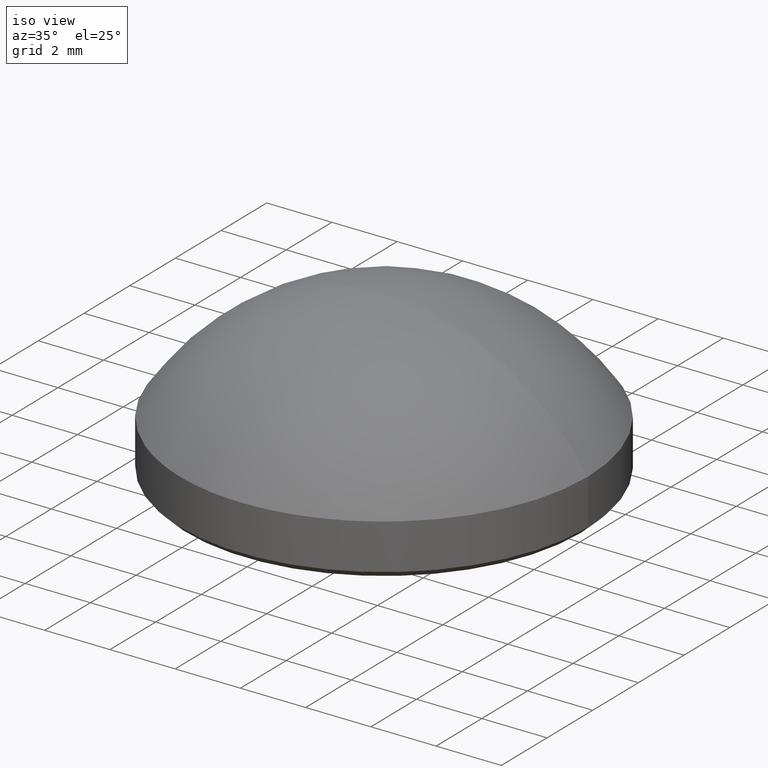
[diagram: clean part render]
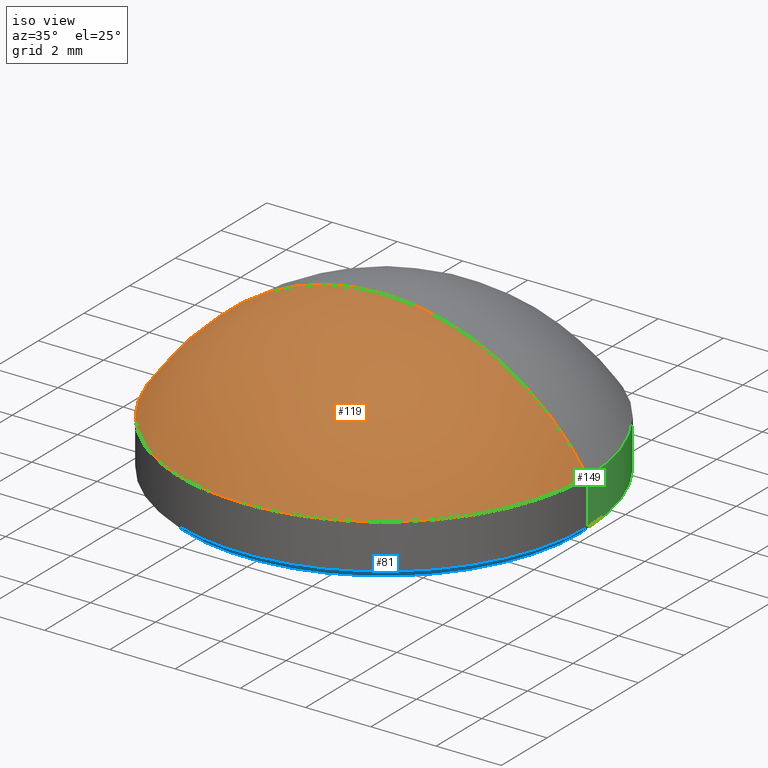
[diagram: same view with three faces highlighted in distinct colors, each labeled with its STEP entity id]
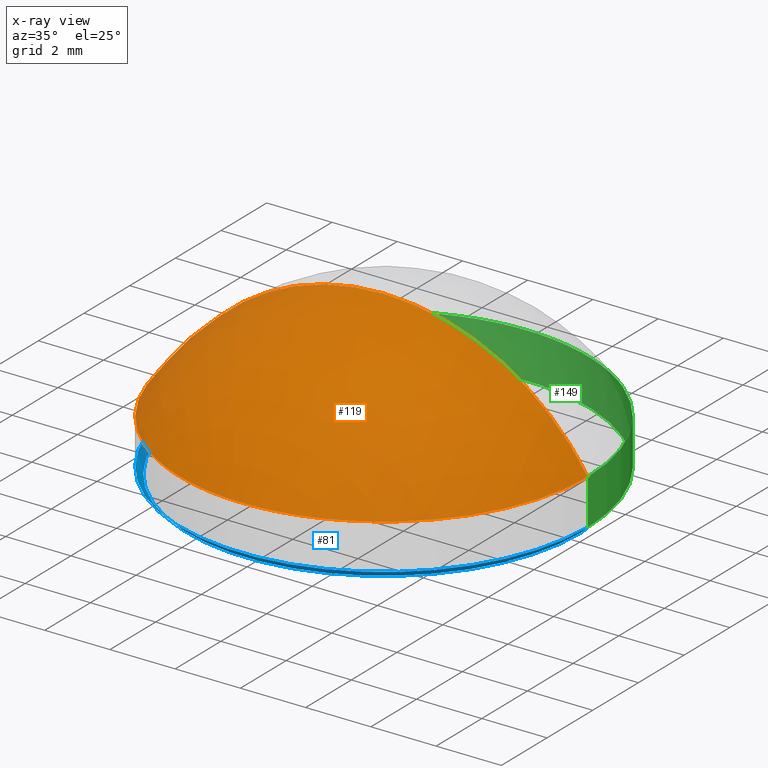
[diagram: x-ray of the same camera — body ghosted, the three highlighted faces saturated]
A machine part, iso view with three faces highlighted in distinct colors.
The next image is the same camera in x-ray (body ghosted, the three faces saturated) — at least one of them is partly hidden behind the body in this view.
Their STEP definitions:

[orange] entity #119 — the highlighted spherical surface has radius 7.4445 mm.
#4 = DIRECTION ( 'NONE',  ( 0.000000000000000000, 0.000000000000000000, 1.000000000000000000 ) ) ;
#6 = EDGE_CURVE ( 'NONE', #61, #165, #167, .T. ) ;
#11 = ORIENTED_EDGE ( 'NONE', *, *, #125, .T. ) ;
#16 = DIRECTION ( 'NONE',  ( -1.224646799147353207E-16, -1.000000000000000000, -0.000000000000000000 ) ) ;
#19 = CARTESIAN_POINT ( 'NONE',  ( -4.558432543370360034E-16, 0.000000000000000000, 5.000000000000000000 ) ) ;
#20 = DIRECTION ( 'NONE',  ( 0.000000000000000000, 0.000000000000000000, 1.000000000000000000 ) ) ;
#25 = ORIENTED_EDGE ( 'NONE', *, *, #6, .T. ) ;
#27 = ORIENTED_EDGE ( 'NONE', *, *, #186, .F. ) ;
#32 = DIRECTION ( 'NONE',  ( 0.000000000000000000, 1.000000000000000000, 0.000000000000000000 ) ) ;
#42 = AXIS2_PLACEMENT_3D ( 'NONE', #48, #171, #68 ) ;
#48 = CARTESIAN_POINT ( 'NONE',  ( 0.000000000000000000, 0.000000000000000000, -2.444485294117647367 ) ) ;
#51 = AXIS2_PLACEMENT_3D ( 'NONE', #124, #4, #87 ) ;
#61 = VERTEX_POINT ( 'NONE', #94 ) ;
#68 = DIRECTION ( 'NONE',  ( -1.000000000000000000, 0.000000000000000000, 0.000000000000000000 ) ) ;
#70 = DIRECTION ( 'NONE',  ( 1.000000000000000000, -1.224646799147353207E-16, 0.000000000000000000 ) ) ;
#71 = EDGE_LOOP ( 'NONE', ( #11, #25, #27 ) ) ;
#83 = CARTESIAN_POINT ( 'NONE',  ( -6.250000000000000000, 0.000000000000000000, 1.600000000000000089 ) ) ;
#86 = FACE_OUTER_BOUND ( 'NONE', #71, .T. ) ;
#87 = DIRECTION ( 'NONE',  ( 1.000000000000000000, 0.000000000000000000, 0.000000000000000000 ) ) ;
#93 = CIRCLE ( 'NONE', #214, 7.444485294117647811 ) ;
#94 = CARTESIAN_POINT ( 'NONE',  ( 6.250000000000000000, 7.654042494670957606E-16, 1.600000000000000089 ) ) ;
#119 = ADVANCED_FACE ( 'NONE', ( #86 ), #174, .T. ) ;
#124 = CARTESIAN_POINT ( 'NONE',  ( 0.000000000000000000, 0.000000000000000000, 1.600000000000000089 ) ) ;
#125 = EDGE_CURVE ( 'NONE', #209, #61, #197, .T. ) ;
#133 = CARTESIAN_POINT ( 'NONE',  ( 0.000000000000000000, 0.000000000000000000, -2.444485294117647367 ) ) ;
#137 = CARTESIAN_POINT ( 'NONE',  ( 0.000000000000000000, 0.000000000000000000, -2.444485294117647367 ) ) ;
#165 = VERTEX_POINT ( 'NONE', #19 ) ;
#167 = CIRCLE ( 'NONE', #168, 7.444485294117647811 ) ;
#168 = AXIS2_PLACEMENT_3D ( 'NONE', #133, #16, #70 ) ;
#171 = DIRECTION ( 'NONE',  ( -0.000000000000000000, -1.000000000000000000, 0.000000000000000000 ) ) ;
#174 = SPHERICAL_SURFACE ( 'NONE', #42, 7.444485294117647811 ) ;
#186 = EDGE_CURVE ( 'NONE', #209, #165, #93, .T. ) ;
#197 = CIRCLE ( 'NONE', #51, 6.250000000000000000 ) ;
#209 = VERTEX_POINT ( 'NONE', #83 ) ;
#214 = AXIS2_PLACEMENT_3D ( 'NONE', #137, #32, #20 ) ;

[blue] entity #81 — the highlighted conical surface has half-angle 45 deg.
#1 = CARTESIAN_POINT ( 'NONE',  ( 0.000000000000000000, 0.000000000000000000, 0.000000000000000000 ) ) ;
#2 = EDGE_CURVE ( 'NONE', #13, #117, #185, .T. ) ;
#3 = DIRECTION ( 'NONE',  ( -0.000000000000000000, -0.000000000000000000, 1.000000000000000000 ) ) ;
#13 = VERTEX_POINT ( 'NONE', #28 ) ;
#28 = CARTESIAN_POINT ( 'NONE',  ( -6.050000000000000711, 7.531577814756223050E-16, 0.000000000000000000 ) ) ;
#30 = DIRECTION ( 'NONE',  ( -0.000000000000000000, -0.000000000000000000, 1.000000000000000000 ) ) ;
#31 = AXIS2_PLACEMENT_3D ( 'NONE', #113, #30, #129 ) ;
#37 = DIRECTION ( 'NONE',  ( 1.000000000000000000, 0.000000000000000000, 0.000000000000000000 ) ) ;
#41 = ORIENTED_EDGE ( 'NONE', *, *, #104, .F. ) ;
#44 = FACE_OUTER_BOUND ( 'NONE', #208, .T. ) ;
#45 = CIRCLE ( 'NONE', #212, 6.250000000000000000 ) ;
#56 = ORIENTED_EDGE ( 'NONE', *, *, #2, .F. ) ;
#65 = DIRECTION ( 'NONE',  ( -0.000000000000000000, -0.000000000000000000, -1.000000000000000000 ) ) ;
#81 = ADVANCED_FACE ( 'NONE', ( #44 ), #136, .T. ) ;
#96 = VERTEX_POINT ( 'NONE', #157 ) ;
#98 = VERTEX_POINT ( 'NONE', #139 ) ;
#104 = EDGE_CURVE ( 'NONE', #117, #96, #45, .T. ) ;
#105 = DIRECTION ( 'NONE',  ( 1.000000000000000000, 0.000000000000000000, 0.000000000000000000 ) ) ;
#110 = AXIS2_PLACEMENT_3D ( 'NONE', #1, #65, #37 ) ;
#113 = CARTESIAN_POINT ( 'NONE',  ( 0.000000000000000000, 0.000000000000000000, 0.1999999999999987899 ) ) ;
#117 = VERTEX_POINT ( 'NONE', #170 ) ;
#120 = VECTOR ( 'NONE', #199, 1000.000000000000114 ) ;
#123 = CIRCLE ( 'NONE', #110, 6.050000000000000711 ) ;
#129 = DIRECTION ( 'NONE',  ( 1.000000000000000000, 0.000000000000000000, 0.000000000000000000 ) ) ;
#136 = CONICAL_SURFACE ( 'NONE', #31, 6.250000000000000000, 0.7853981633974504994 ) ;
#139 = CARTESIAN_POINT ( 'NONE',  ( 6.050000000000000711, 0.000000000000000000, 0.000000000000000000 ) ) ;
#140 = LINE ( 'NONE', #191, #120 ) ;
#141 = EDGE_CURVE ( 'NONE', #98, #96, #140, .T. ) ;
#147 = ORIENTED_EDGE ( 'NONE', *, *, #141, .T. ) ;
#150 = CARTESIAN_POINT ( 'NONE',  ( -6.250000000000000000, 7.654042494670957606E-16, 0.1999999999999987899 ) ) ;
#151 = DIRECTION ( 'NONE',  ( -0.7071067811865490160, 8.659560562354953812E-17, 0.7071067811865460184 ) ) ;
#154 = VECTOR ( 'NONE', #151, 1000.000000000000114 ) ;
#157 = CARTESIAN_POINT ( 'NONE',  ( 6.250000000000000000, 7.654042494670957606E-16, 0.1999999999999987899 ) ) ;
#162 = ORIENTED_EDGE ( 'NONE', *, *, #215, .F. ) ;
#170 = CARTESIAN_POINT ( 'NONE',  ( -6.250000000000000000, 0.000000000000000000, 0.1999999999999987899 ) ) ;
#185 = LINE ( 'NONE', #150, #154 ) ;
#191 = CARTESIAN_POINT ( 'NONE',  ( 6.250000000000000000, 0.000000000000000000, 0.1999999999999987899 ) ) ;
#199 = DIRECTION ( 'NONE',  ( 0.7071067811865490160, 0.000000000000000000, 0.7071067811865460184 ) ) ;
#201 = CARTESIAN_POINT ( 'NONE',  ( 0.000000000000000000, 0.000000000000000000, 0.1999999999999987899 ) ) ;
#208 = EDGE_LOOP ( 'NONE', ( #56, #162, #147, #41 ) ) ;
#212 = AXIS2_PLACEMENT_3D ( 'NONE', #201, #3, #105 ) ;
#215 = EDGE_CURVE ( 'NONE', #98, #13, #123, .T. ) ;

[green] entity #149 — the highlighted cylindrical surface (partial cylindrical patch) has radius 6.25 mm, axis along (-0, -0, -1).
#14 = CIRCLE ( 'NONE', #142, 6.250000000000000000 ) ;
#15 = DIRECTION ( 'NONE',  ( -0.000000000000000000, -0.000000000000000000, -1.000000000000000000 ) ) ;
#18 = VECTOR ( 'NONE', #15, 1000.000000000000000 ) ;
#29 = DIRECTION ( 'NONE',  ( 1.000000000000000000, 0.000000000000000000, 0.000000000000000000 ) ) ;
#33 = DIRECTION ( 'NONE',  ( 0.000000000000000000, 0.000000000000000000, 1.000000000000000000 ) ) ;
#35 = EDGE_CURVE ( 'NONE', #209, #117, #92, .T. ) ;
#40 = EDGE_LOOP ( 'NONE', ( #73, #89, #114, #180 ) ) ;
#50 = DIRECTION ( 'NONE',  ( -1.000000000000000000, 0.000000000000000000, 0.000000000000000000 ) ) ;
#61 = VERTEX_POINT ( 'NONE', #94 ) ;
#62 = VECTOR ( 'NONE', #121, 1000.000000000000000 ) ;
#69 = AXIS2_PLACEMENT_3D ( 'NONE', #203, #190, #50 ) ;
#73 = ORIENTED_EDGE ( 'NONE', *, *, #182, .F. ) ;
#76 = CARTESIAN_POINT ( 'NONE',  ( -6.250000000000000000, 0.000000000000000000, 1.600000000000000089 ) ) ;
#77 = AXIS2_PLACEMENT_3D ( 'NONE', #84, #33, #155 ) ;
#79 = EDGE_CURVE ( 'NONE', #96, #117, #14, .T. ) ;
#83 = CARTESIAN_POINT ( 'NONE',  ( -6.250000000000000000, 0.000000000000000000, 1.600000000000000089 ) ) ;
#84 = CARTESIAN_POINT ( 'NONE',  ( 0.000000000000000000, 0.000000000000000000, 1.600000000000000089 ) ) ;
#89 = ORIENTED_EDGE ( 'NONE', *, *, #108, .T. ) ;
#92 = LINE ( 'NONE', #76, #18 ) ;
#94 = CARTESIAN_POINT ( 'NONE',  ( 6.250000000000000000, 7.654042494670957606E-16, 1.600000000000000089 ) ) ;
#96 = VERTEX_POINT ( 'NONE', #157 ) ;
#103 = CARTESIAN_POINT ( 'NONE',  ( 6.250000000000000000, 7.654042494670957606E-16, 1.600000000000000089 ) ) ;
#106 = FACE_OUTER_BOUND ( 'NONE', #40, .T. ) ;
#108 = EDGE_CURVE ( 'NONE', #61, #96, #122, .T. ) ;
#114 = ORIENTED_EDGE ( 'NONE', *, *, #79, .T. ) ;
#115 = CARTESIAN_POINT ( 'NONE',  ( 0.000000000000000000, 0.000000000000000000, 0.1999999999999987899 ) ) ;
#117 = VERTEX_POINT ( 'NONE', #170 ) ;
#121 = DIRECTION ( 'NONE',  ( -0.000000000000000000, -0.000000000000000000, -1.000000000000000000 ) ) ;
#122 = LINE ( 'NONE', #103, #62 ) ;
#142 = AXIS2_PLACEMENT_3D ( 'NONE', #115, #184, #29 ) ;
#149 = ADVANCED_FACE ( 'NONE', ( #106 ), #189, .T. ) ;
#155 = DIRECTION ( 'NONE',  ( 1.000000000000000000, 0.000000000000000000, 0.000000000000000000 ) ) ;
#157 = CARTESIAN_POINT ( 'NONE',  ( 6.250000000000000000, 7.654042494670957606E-16, 0.1999999999999987899 ) ) ;
#170 = CARTESIAN_POINT ( 'NONE',  ( -6.250000000000000000, 0.000000000000000000, 0.1999999999999987899 ) ) ;
#176 = CIRCLE ( 'NONE', #77, 6.250000000000000000 ) ;
#180 = ORIENTED_EDGE ( 'NONE', *, *, #35, .F. ) ;
#182 = EDGE_CURVE ( 'NONE', #61, #209, #176, .T. ) ;
#184 = DIRECTION ( 'NONE',  ( -0.000000000000000000, -0.000000000000000000, 1.000000000000000000 ) ) ;
#189 = CYLINDRICAL_SURFACE ( 'NONE', #69, 6.250000000000000000 ) ;
#190 = DIRECTION ( 'NONE',  ( -0.000000000000000000, -0.000000000000000000, -1.000000000000000000 ) ) ;
#203 = CARTESIAN_POINT ( 'NONE',  ( 0.000000000000000000, 0.000000000000000000, 1.600000000000000089 ) ) ;
#209 = VERTEX_POINT ( 'NONE', #83 ) ;